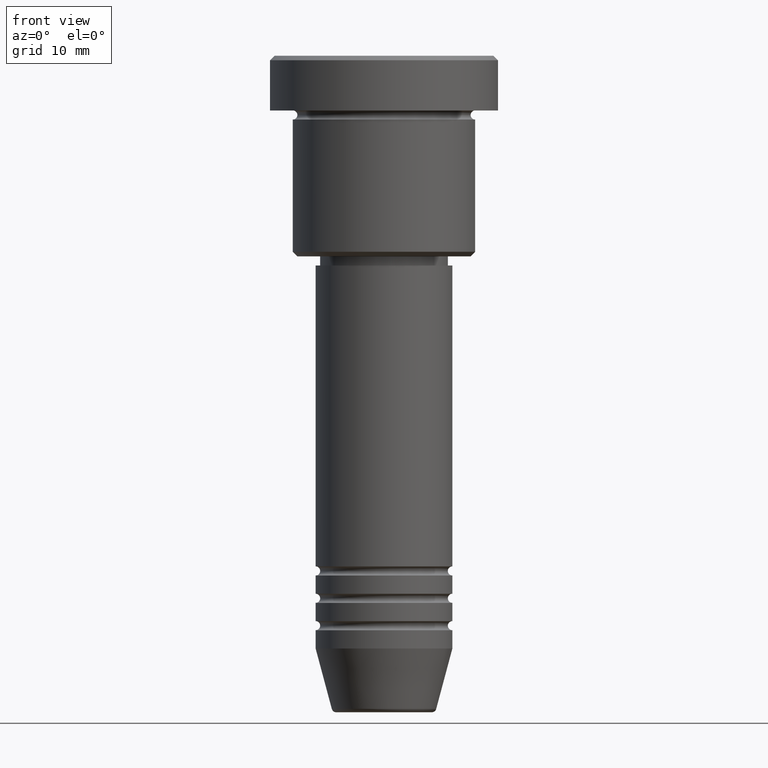
[diagram: clean part render]
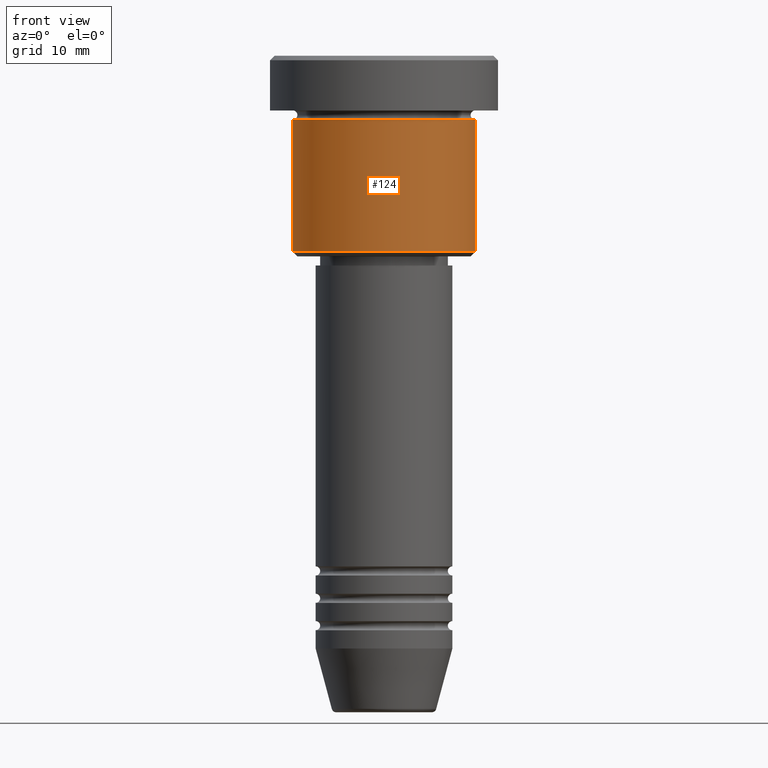
[diagram: same view with one face highlighted and labeled with its STEP entity id]
A machine part, front view. The second image highlights one B-rep face of the part: STEP entity #124.
In plain terms, the highlighted cylindrical surface (partial cylindrical patch) has radius 10 mm, axis along (-0, -0, 1).
Its self-contained STEP definition (entity closure, byte-faithful):
#27 = DIRECTION ( 'NONE',  ( 1.000000000000000000, 0.000000000000000000, 0.000000000000000000 ) ) ;
#33 = CYLINDRICAL_SURFACE ( 'NONE', #914, 10.00000000000000000 ) ;
#86 = VERTEX_POINT ( 'NONE', #315 ) ;
#124 = ADVANCED_FACE ( 'NONE', ( #844 ), #33, .T. ) ;
#130 = DIRECTION ( 'NONE',  ( -0.000000000000000000, -0.000000000000000000, 1.000000000000000000 ) ) ;
#131 = AXIS2_PLACEMENT_3D ( 'NONE', #1046, #130, #228 ) ;
#163 = EDGE_CURVE ( 'NONE', #995, #552, #479, .T. ) ;
#172 = DIRECTION ( 'NONE',  ( -1.000000000000000000, 0.000000000000000000, 0.000000000000000000 ) ) ;
#176 = VECTOR ( 'NONE', #310, 1000.000000000000000 ) ;
#228 = DIRECTION ( 'NONE',  ( 1.000000000000000000, 0.000000000000000000, 0.000000000000000000 ) ) ;
#264 = VECTOR ( 'NONE', #1022, 1000.000000000000000 ) ;
#266 = CIRCLE ( 'NONE', #131, 10.00000000000000000 ) ;
#310 = DIRECTION ( 'NONE',  ( -0.000000000000000000, -0.000000000000000000, 1.000000000000000000 ) ) ;
#315 = CARTESIAN_POINT ( 'NONE',  ( 10.00000000000000000, 0.000000000000000000, -6.999999999999996447 ) ) ;
#479 = LINE ( 'NONE', #1130, #176 ) ;
#504 = EDGE_LOOP ( 'NONE', ( #864, #644, #754, #637 ) ) ;
#552 = VERTEX_POINT ( 'NONE', #694 ) ;
#554 = CARTESIAN_POINT ( 'NONE',  ( 10.00000000000000000, 0.000000000000000000, 0.000000000000000000 ) ) ;
#628 = DIRECTION ( 'NONE',  ( -0.000000000000000000, -0.000000000000000000, 1.000000000000000000 ) ) ;
#637 = ORIENTED_EDGE ( 'NONE', *, *, #1051, .F. ) ;
#644 = ORIENTED_EDGE ( 'NONE', *, *, #1173, .T. ) ;
#676 = CARTESIAN_POINT ( 'NONE',  ( -10.00000000000000000, 1.224646799147353256E-15, -21.49999999999999289 ) ) ;
#692 = VERTEX_POINT ( 'NONE', #1172 ) ;
#694 = CARTESIAN_POINT ( 'NONE',  ( -10.00000000000000000, 1.224646799147353256E-15, -6.999999999999996447 ) ) ;
#754 = ORIENTED_EDGE ( 'NONE', *, *, #857, .T. ) ;
#798 = CARTESIAN_POINT ( 'NONE',  ( 0.000000000000000000, 0.000000000000000000, -21.49999999999999289 ) ) ;
#844 = FACE_OUTER_BOUND ( 'NONE', #504, .T. ) ;
#857 = EDGE_CURVE ( 'NONE', #692, #86, #1114, .T. ) ;
#863 = DIRECTION ( 'NONE',  ( -0.000000000000000000, -0.000000000000000000, 1.000000000000000000 ) ) ;
#864 = ORIENTED_EDGE ( 'NONE', *, *, #163, .F. ) ;
#873 = CIRCLE ( 'NONE', #1008, 10.00000000000000000 ) ;
#914 = AXIS2_PLACEMENT_3D ( 'NONE', #931, #863, #27 ) ;
#931 = CARTESIAN_POINT ( 'NONE',  ( 0.000000000000000000, 0.000000000000000000, 0.000000000000000000 ) ) ;
#995 = VERTEX_POINT ( 'NONE', #676 ) ;
#1008 = AXIS2_PLACEMENT_3D ( 'NONE', #798, #628, #172 ) ;
#1022 = DIRECTION ( 'NONE',  ( -0.000000000000000000, -0.000000000000000000, 1.000000000000000000 ) ) ;
#1046 = CARTESIAN_POINT ( 'NONE',  ( 0.000000000000000000, 0.000000000000000000, -6.999999999999996447 ) ) ;
#1051 = EDGE_CURVE ( 'NONE', #552, #86, #266, .T. ) ;
#1114 = LINE ( 'NONE', #554, #264 ) ;
#1130 = CARTESIAN_POINT ( 'NONE',  ( -10.00000000000000000, 1.224646799147353256E-15, 0.000000000000000000 ) ) ;
#1172 = CARTESIAN_POINT ( 'NONE',  ( 10.00000000000000000, 0.000000000000000000, -21.49999999999999289 ) ) ;
#1173 = EDGE_CURVE ( 'NONE', #995, #692, #873, .T. ) ;